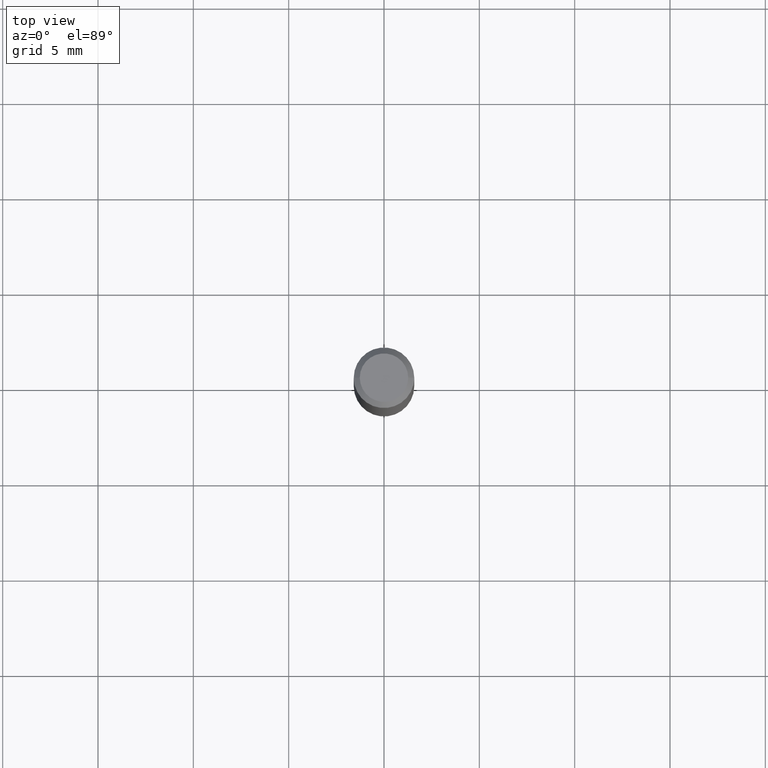
[diagram: clean part render]
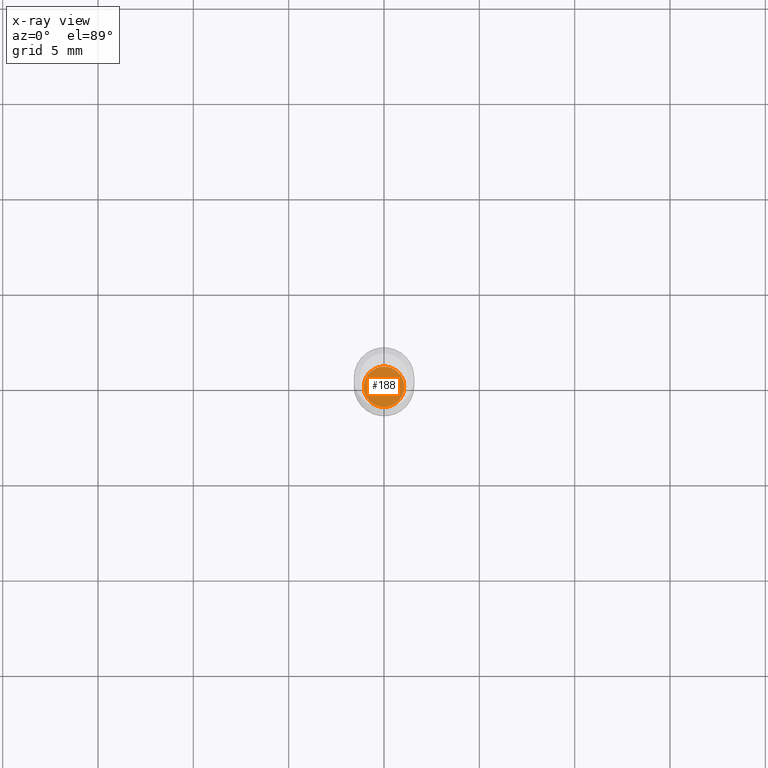
[diagram: x-ray — body ghosted, one internal face saturated and labeled with its STEP entity id]
A machine part, top view, then the same camera in x-ray: the body is ghosted and one INTERNAL B-rep face — a face not visible from any outside direction — is saturated and labeled: STEP entity #188.
In plain terms, the highlighted planar face has unit normal (-0, 0, 1).
Its self-contained STEP definition (entity closure, byte-faithful):
#23 = EDGE_LOOP ( 'NONE', ( #304, #69 ) ) ;
#65 = CIRCLE ( 'NONE', #125, 0.04179999999999999688 ) ;
#69 = ORIENTED_EDGE ( 'NONE', *, *, #474, .F. ) ;
#70 = DIRECTION ( 'NONE',  ( 1.000000000000000000, -6.982962677686265922E-15, 0.000000000000000000 ) ) ;
#91 = AXIS2_PLACEMENT_3D ( 'NONE', #281, #431, #237 ) ;
#98 = AXIS2_PLACEMENT_3D ( 'NONE', #170, #478, #333 ) ;
#119 = PLANE ( 'NONE',  #91 ) ;
#125 = AXIS2_PLACEMENT_3D ( 'NONE', #448, #348, #70 ) ;
#155 = FACE_OUTER_BOUND ( 'NONE', #23, .T. ) ;
#170 = CARTESIAN_POINT ( 'NONE',  ( 2.690015686803650369E-29, -3.840629472727460101E-15, -1.100000000000000089 ) ) ;
#188 = ADVANCED_FACE ( 'NONE', ( #155 ), #119, .F. ) ;
#213 = VERTEX_POINT ( 'NONE', #245 ) ;
#217 = CARTESIAN_POINT ( 'NONE',  ( -0.04179999999999999688, -3.540973382005627390E-15, -1.100000000000000089 ) ) ;
#237 = DIRECTION ( 'NONE',  ( 1.000000000000000000, -6.982962677686265922E-15, 4.876176775795935793E-29 ) ) ;
#245 = CARTESIAN_POINT ( 'NONE',  ( 0.04179999999999999688, -4.132517312654745753E-15, -1.100000000000000089 ) ) ;
#281 = CARTESIAN_POINT ( 'NONE',  ( 2.690015686803650369E-29, -3.840629472727460101E-15, -1.100000000000000089 ) ) ;
#287 = CIRCLE ( 'NONE', #98, 0.04179999999999999688 ) ;
#304 = ORIENTED_EDGE ( 'NONE', *, *, #320, .F. ) ;
#320 = EDGE_CURVE ( 'NONE', #213, #484, #287, .T. ) ;
#333 = DIRECTION ( 'NONE',  ( 1.000000000000000000, -6.982962677686265922E-15, 0.000000000000000000 ) ) ;
#348 = DIRECTION ( 'NONE',  ( -2.445468806185136597E-29, 3.491481338843145583E-15, 1.000000000000000000 ) ) ;
#431 = DIRECTION ( 'NONE',  ( -2.438088387897960049E-29, 3.491481338843145188E-15, 1.000000000000000000 ) ) ;
#448 = CARTESIAN_POINT ( 'NONE',  ( 2.690015686803650369E-29, -3.840629472727460101E-15, -1.100000000000000089 ) ) ;
#474 = EDGE_CURVE ( 'NONE', #484, #213, #65, .T. ) ;
#478 = DIRECTION ( 'NONE',  ( -2.445468806185136597E-29, 3.491481338843145583E-15, 1.000000000000000000 ) ) ;
#484 = VERTEX_POINT ( 'NONE', #217 ) ;